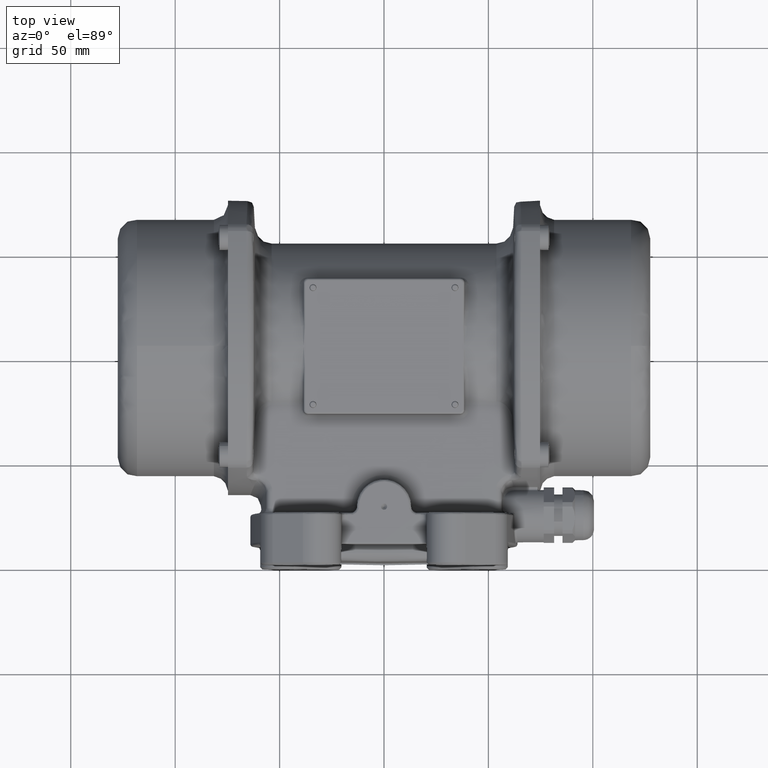
[diagram: clean part render]
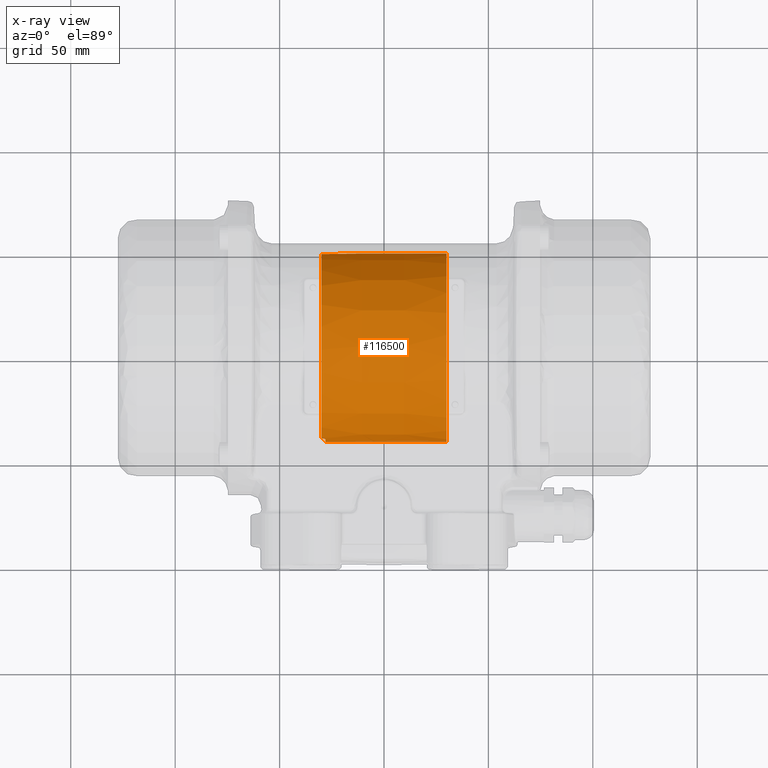
[diagram: x-ray — body ghosted, one internal face saturated and labeled with its STEP entity id]
A machine part, top view, then the same camera in x-ray: the body is ghosted and one INTERNAL B-rep face — a face not visible from any outside direction — is saturated and labeled: STEP entity #116500.
In plain terms, the highlighted conical surface has half-angle 0.024 deg.
Its self-contained STEP definition (entity closure, byte-faithful):
#76 = CARTESIAN_POINT ( 'NONE',  ( -28.00000000000001100, 61.20718973791230200, -11.19579621337726600 ) ) ;
#1265 = CARTESIAN_POINT ( 'NONE',  ( -0.9591951640736524600, 59.82191305653572800, 1.756710943360450400 ) ) ;
#2048 = EDGE_CURVE ( 'NONE', #46435, #46435, #41833, .T. ) ;
#2872 = CARTESIAN_POINT ( 'NONE',  ( -28.63048395047406900, 61.58844660928056700, 12.59148429940840700 ) ) ;
#3505 = CARTESIAN_POINT ( 'NONE',  ( -4.524391948891231900, 59.80428119676132300, 1.167370256460127200 ) ) ;
#5712 = CARTESIAN_POINT ( 'NONE',  ( -0.7441189564443642100, 59.81398049055822200, 1.541855208080801700 ) ) ;
#6078 = FACE_OUTER_BOUND ( 'NONE', #53821, .T. ) ;
#6262 = AXIS2_PLACEMENT_3D ( 'NONE', #68672, #123590, #96294 ) ;
#6907 = CARTESIAN_POINT ( 'NONE',  ( -28.38668111963762500, 61.55780785602030400, -12.48622016201640900 ) ) ;
#8174 = CARTESIAN_POINT ( 'NONE',  ( -1.075250301185313400, 59.82582032749495200, -1.852137366696527100 ) ) ;
#10307 = CARTESIAN_POINT ( 'NONE',  ( -4.595957554822885700, 59.80100924520926500, 1.033514910205030100 ) ) ;
#11484 = CARTESIAN_POINT ( 'NONE',  ( -29.65038747615046300, 61.92174534944577900, -13.68662555184475800 ) ) ;
#11653 = CARTESIAN_POINT ( 'NONE',  ( -30.66662882627647200, 62.02308886876912200, -14.00000000041757700 ) ) ;
#12104 = CARTESIAN_POINT ( 'NONE',  ( -28.00000000000290300, 61.09694766286659700, 10.75347987912326000 ) ) ;
#12537 = CARTESIAN_POINT ( 'NONE',  ( -2.807929271627971800, 59.84882699633639200, 2.331510117293006200 ) ) ;
#12637 = CARTESIAN_POINT ( 'NONE',  ( -0.1679591586478749700, 59.78756988322093200, 0.3079605312763930600 ) ) ;
#12747 = CARTESIAN_POINT ( 'NONE',  ( -3.103273009496274200, 59.84516713404418900, -2.257250850667746000 ) ) ;
#14581 = VERTEX_POINT ( 'NONE', #94274 ) ;
#14980 = EDGE_CURVE ( 'NONE', #14581, #47254, #79836, .T. ) ;
#14989 = CARTESIAN_POINT ( 'NONE',  ( -0.9579767890862713700, 59.82187081702780100, -1.755641839759673400 ) ) ;
#15196 = EDGE_LOOP ( 'NONE', ( #71601 ) ) ;
#17143 = CARTESIAN_POINT ( 'NONE',  ( -0.2422682719131845400, 59.79138072526280500, -0.6032879798772877700 ) ) ;
#17243 = CARTESIAN_POINT ( 'NONE',  ( -4.595418627989382700, 59.80103367417699200, -1.034462519434005800 ) ) ;
#20602 = CARTESIAN_POINT ( 'NONE',  ( -28.99817763037981800, 61.78282720874974400, -13.24291403402370200 ) ) ;
#21761 = CARTESIAN_POINT ( 'NONE',  ( -2.194559165973540600, 59.84778376505631300, 2.316402160914696300 ) ) ;
#21869 = CARTESIAN_POINT ( 'NONE',  ( -1.329901839518759000, 59.83323750238378100, -2.022595602663269000 ) ) ;
#22845 = CARTESIAN_POINT ( 'NONE',  ( -30.79789903522002700, 62.02314577073265400, -13.99999808823929800 ) ) ;
#23683 = DIRECTION ( 'NONE',  ( -2.302730277845319100E-016, -1.000000000000000000, 8.326672684688669100E-017 ) ) ;
#23930 = CARTESIAN_POINT ( 'NONE',  ( -28.00000000000290300, 61.09694766286659700, 10.75347987912326000 ) ) ;
#26364 = CARTESIAN_POINT ( 'NONE',  ( -4.832021946906008800, 59.78951334247789600, 2.385244779468109800E-015 ) ) ;
#26454 = CARTESIAN_POINT ( 'NONE',  ( -1.465486840574935500, 59.83663973350437000, -2.095047785506118000 ) ) ;
#26723 = DIRECTION ( 'NONE',  ( 1.000000000000000000, -1.150728673948129800E-016, -3.835762246493769600E-017 ) ) ;
#27730 = B_SPLINE_CURVE_WITH_KNOTS ( 'NONE', 3,
 ( #137246, #22845, #73147, #109698, #121106, #11484, #47993, #38889, #20602, #127984, #68554, #6907, #86873, #75416, #36612, #125707, #76, #112024 ),
 .UNSPECIFIED., .F., .F.,
 ( 4, 2, 2, 2, 2, 2, 2, 2, 4 ),
 ( 0.0000000000000000000, 0.0005973967454903261900, 0.001194793490980652400, 0.001792190236470978600, 0.002389586981961304800, 0.002986983727451631000, 0.003584380472941957200, 0.004181777218432283800, 0.004779173963922609500 ),
 .UNSPECIFIED. ) ;
#28721 = CARTESIAN_POINT ( 'NONE',  ( -4.522914775663095600, 59.80434806045986600, -1.170047588452056500 ) ) ;
#30419 = CARTESIAN_POINT ( 'NONE',  ( -28.04661305783869500, 61.24903519635886100, 11.36034028670292400 ) ) ;
#31236 = CARTESIAN_POINT ( 'NONE',  ( -29.70260038306108200, 61.85160644014899800, 13.46400257497232800 ) ) ;
#32839 = CIRCLE ( 'NONE', #56392, 45.22500000000000100 ) ;
#33306 = CARTESIAN_POINT ( 'NONE',  ( -0.4755939824666823900, 59.80259376394835900, -1.167375021531350300 ) ) ;
#34556 = CARTESIAN_POINT ( 'NONE',  ( -29.05697534669284500, 61.71948938152274900, 13.03389284351778900 ) ) ;
#34796 = CARTESIAN_POINT ( 'NONE',  ( -28.37729604173941300, 61.47987968419532500, 12.21147677543944000 ) ) ;
#35805 = CARTESIAN_POINT ( 'NONE',  ( -29.42410187056383100, 61.80429146446464000, 13.31278413948685100 ) ) ;
#36612 = CARTESIAN_POINT ( 'NONE',  ( -28.09399500596581900, 61.35806315925512400, -11.76996144634384400 ) ) ;
#37766 = CARTESIAN_POINT ( 'NONE',  ( -4.832021946906009700, 59.78951334247791000, 0.1539883212716038100 ) ) ;
#38889 = CARTESIAN_POINT ( 'NONE',  ( -29.15064227490235600, 61.82225758318271100, -13.37041809647877600 ) ) ;
#39634 = DIRECTION ( 'NONE',  ( 1.000000000000000000, -1.150728673948129800E-016, -3.835762246493769600E-017 ) ) ;
#41135 = CONICAL_SURFACE ( 'NONE', #139123, 45.22500000000000100, 0.0004166666425537813400 ) ;
#41833 = B_SPLINE_CURVE_WITH_KNOTS ( 'NONE', 3,
 ( #26364, #37766, #88034, #124631, #108589, #10307, #3505, #92507, #113208, #99475, #106323, #94907, #44651, #83469, #12537, #140675, #21761, #101735, #110841, #67362, #74313, #122253, #1265, #5712, #81199, #117770, #136160, #60538, #12637, #74210, #78846, #17143, #97136, #99580, #33306, #83566, #42424, #14989, #8174, #21869, #26454, #140773, #136253, #74412, #90384, #12747, #133917, #122350, #92710, #92616, #49253, #78940, #101830, #28721, #17243, #72057, #120127, #115544 ),
 .UNSPECIFIED., .T., .F.,
 ( 4, 2, 2, 2, 2, 2, 2, 2, 2, 2, 2, 2, 2, 2, 2, 2, 2, 2, 2, 2, 2, 2, 2, 2, 2, 2, 2, 2, 4 ),
 ( -0.003643149380544224600, -0.003187750303662130600, -0.002732351226780036600, -0.002276952149897943500, -0.001821553073015849500, -0.001366153996133755500, -0.0009107549192516623700, 4.323451252433510600E-008, 0.0004554423113946170400, 0.0009108413882767101700, 0.001366240465158802400, 0.001821639542040896400, 0.002277038618922988700, 0.002732437695805081800, 0.003643235849569268100, 0.004098634926451361200, 0.004554034003333455200, 0.005009433080215548400, 0.005464832157097639800, 0.005920231233979732900, 0.006375630310861827800, 0.007286428464626014100, 0.007741827541508107200, 0.008197226618390200300, 0.008652625695272295200, 0.009108024772154388300, 0.009563423849036483200, 0.01001882292591857600, 0.01092962107968276400 ),
 .UNSPECIFIED. ) ;
#42424 = CARTESIAN_POINT ( 'NONE',  ( -0.7430529249628072800, 59.81393844643341100, -1.540640665760967500 ) ) ;
#42689 = FACE_BOUND ( 'NONE', #100967, .T. ) ;
#43323 = ORIENTED_EDGE ( 'NONE', *, *, #64327, .F. ) ;
#44222 = CARTESIAN_POINT ( 'NONE',  ( -30.00000000000114800, 105.0000000000000000, -2.195499839133995100E-015 ) ) ;
#44651 = CARTESIAN_POINT ( 'NONE',  ( -3.534478584112805700, 59.83750315965478700, 2.095056674949551400 ) ) ;
#46435 = VERTEX_POINT ( 'NONE', #130790 ) ;
#46643 = VERTEX_POINT ( 'NONE', #131312 ) ;
#47254 = VERTEX_POINT ( 'NONE', #139971 ) ;
#47993 = CARTESIAN_POINT ( 'NONE',  ( -29.47736033105734100, 61.89176779276110800, -13.59240706411138100 ) ) ;
#49253 = CARTESIAN_POINT ( 'NONE',  ( -4.040772126425721900, 59.82319856308408400, -1.756724895951598900 ) ) ;
#49617 = DIRECTION ( 'NONE',  ( -2.301457347896261600E-016, -1.000000000000000000, 8.326672684688669100E-017 ) ) ;
#52889 = ORIENTED_EDGE ( 'NONE', *, *, #14980, .F. ) ;
#53821 = EDGE_LOOP ( 'NONE', ( #43323 ) ) ;
#54780 = EDGE_CURVE ( 'NONE', #68144, #114702, #101299, .T. ) ;
#56392 = AXIS2_PLACEMENT_3D ( 'NONE', #59144, #107170, #56880 ) ;
#56880 = DIRECTION ( 'NONE',  ( 4.748673661159286200E-014, -1.000000000000000000, 8.326672684688669100E-017 ) ) ;
#59144 = CARTESIAN_POINT ( 'NONE',  ( 30.00000000000114800, 105.0000000000000000, -4.496957187030429500E-015 ) ) ;
#60538 = CARTESIAN_POINT ( 'NONE',  ( -0.2298814799929683200, 59.79089545957983600, 0.6139783371546316800 ) ) ;
#64327 = EDGE_CURVE ( 'NONE', #46643, #46643, #32839, .T. ) ;
#64506 = CARTESIAN_POINT ( 'NONE',  ( -28.18475543531669600, 61.36551985407135100, 11.79674471153071900 ) ) ;
#66458 = CARTESIAN_POINT ( 'NONE',  ( -30.33331441314178500, 62.02294280471558400, -14.00000000041755000 ) ) ;
#67362 = CARTESIAN_POINT ( 'NONE',  ( -1.466411223272046800, 59.83666425057888500, 2.095574979778532600 ) ) ;
#68144 = VERTEX_POINT ( 'NONE', #23930 ) ;
#68554 = CARTESIAN_POINT ( 'NONE',  ( -28.60187020829106400, 61.65318206560921500, -12.81308009821976100 ) ) ;
#68672 = CARTESIAN_POINT ( 'NONE',  ( -28.00000000000580200, 105.0000000000000000, -2.272215084063694800E-015 ) ) ;
#70516 = EDGE_CURVE ( 'NONE', #14581, #92497, #27730, .T. ) ;
#70927 = EDGE_CURVE ( 'NONE', #47254, #114702, #128999, .T. ) ;
#70961 = ORIENTED_EDGE ( 'NONE', *, *, #131773, .F. ) ;
#71601 = ORIENTED_EDGE ( 'NONE', *, *, #2048, .F. ) ;
#72057 = CARTESIAN_POINT ( 'NONE',  ( -4.770098507885589500, 59.79278752451039500, -0.6139900019167725500 ) ) ;
#72500 = ORIENTED_EDGE ( 'NONE', *, *, #54780, .T. ) ;
#73147 = CARTESIAN_POINT ( 'NONE',  ( -30.59949590421263800, 62.01646089864576800, -13.97978930964190900 ) ) ;
#74210 = CARTESIAN_POINT ( 'NONE',  ( -0.1679620612344734100, 59.78757003407662300, -0.1540022345345633000 ) ) ;
#74313 = CARTESIAN_POINT ( 'NONE',  ( -1.332538980336258200, 59.83330501915659000, 2.024047261218251800 ) ) ;
#74392 = CIRCLE ( 'NONE', #6262, 45.20083333333330000 ) ;
#74412 = CARTESIAN_POINT ( 'NONE',  ( -2.653979394883999800, 59.84876251919601500, -2.331505355360758500 ) ) ;
#75416 = CARTESIAN_POINT ( 'NONE',  ( -28.15047889951010200, 61.40924566314220100, -11.95785042058225600 ) ) ;
#75719 = CARTESIAN_POINT ( 'NONE',  ( -28.72948749380831400, 61.62349852676400300, 12.71142135717725500 ) ) ;
#75864 = CARTESIAN_POINT ( 'NONE',  ( -28.24242478163769800, 61.40442399790212100, 11.93950880959793500 ) ) ;
#78846 = CARTESIAN_POINT ( 'NONE',  ( -0.1830719990483249400, 59.78836248240494200, -0.3054119037116643200 ) ) ;
#78940 = CARTESIAN_POINT ( 'NONE',  ( -4.255852626123001400, 59.81544501801429400, -1.541868416689639900 ) ) ;
#79836 = B_SPLINE_CURVE_WITH_KNOTS ( 'NONE', 3,
 ( #93996, #11653, #66458, #82576 ),
 .UNSPECIFIED., .F., .F.,
 ( 4, 4 ),
 ( 5.676060011253299600E-005, 1.000000000000000000 ),
 .UNSPECIFIED. ) ;
#81199 = CARTESIAN_POINT ( 'NONE',  ( -0.6475876625807380800, 59.81004047897413800, 1.424616450911232700 ) ) ;
#82576 = CARTESIAN_POINT ( 'NONE',  ( -30.00000000000410000, 62.02279674059740000, -14.00000000000000000 ) ) ;
#83011 = ORIENTED_EDGE ( 'NONE', *, *, #70516, .T. ) ;
#83469 = CARTESIAN_POINT ( 'NONE',  ( -3.113955994789630000, 59.84565172913075100, 2.269634417697225200 ) ) ;
#83566 = CARTESIAN_POINT ( 'NONE',  ( -0.6446619547286459600, 59.80991792281469800, -1.420706447381509200 ) ) ;
#86873 = CARTESIAN_POINT ( 'NONE',  ( -28.29670177600041800, 61.50888103092317000, -12.31507666790474800 ) ) ;
#88034 = CARTESIAN_POINT ( 'NONE',  ( -4.816912817177605000, 59.79029319241929800, 0.3053988376590442400 ) ) ;
#88392 = CARTESIAN_POINT ( 'NONE',  ( 30.00000000000329700, 105.0000000000000000, -4.496957187030429500E-015 ) ) ;
#90384 = CARTESIAN_POINT ( 'NONE',  ( -2.805390300254022100, 59.84803884690163800, -2.316406620270425000 ) ) ;
#92090 = CARTESIAN_POINT ( 'NONE',  ( -27.99999999999999600, 61.17231403770818300, 11.06117691639159500 ) ) ;
#92497 = VERTEX_POINT ( 'NONE', #138334 ) ;
#92507 = CARTESIAN_POINT ( 'NONE',  ( -4.355322208107871500, 59.81146475003746600, 1.420705181963014800 ) ) ;
#92616 = CARTESIAN_POINT ( 'NONE',  ( -3.920799711697177800, 59.82712900846079400, -1.855077520637873300 ) ) ;
#92710 = CARTESIAN_POINT ( 'NONE',  ( -3.667421044877864600, 59.83427947075743700, -2.024060655099439100 ) ) ;
#93996 = CARTESIAN_POINT ( 'NONE',  ( -30.99997161970560100, 62.02323494519480100, -14.00000000000000000 ) ) ;
#94158 = CARTESIAN_POINT ( 'NONE',  ( -28.45484140373140400, 61.51675274765519000, 12.34189081976987300 ) ) ;
#94274 = CARTESIAN_POINT ( 'NONE',  ( -30.99997161970560100, 62.02323494519480100, -14.00000000000000000 ) ) ;
#94907 = CARTESIAN_POINT ( 'NONE',  ( -3.670067798550663300, 59.83421390983811200, 2.022603546741558800 ) ) ;
#96294 = DIRECTION ( 'NONE',  ( -2.302687824161247200E-016, -1.000000000000000000, 8.326672684688669100E-017 ) ) ;
#97136 = CARTESIAN_POINT ( 'NONE',  ( -0.2870738894875296000, 59.79364190636795900, -0.7512978821492019000 ) ) ;
#99475 = CARTESIAN_POINT ( 'NONE',  ( -4.042000838679388000, 59.82315699097900800, 1.755646844859911200 ) ) ;
#99580 = CARTESIAN_POINT ( 'NONE',  ( -0.4040288602827681300, 59.79926231367301900, -1.033521504916699000 ) ) ;
#100967 = EDGE_LOOP ( 'NONE', ( #138164, #52889, #83011, #70961, #72500 ) ) ;
#101299 = B_SPLINE_CURVE_WITH_KNOTS ( 'NONE', 3,
 ( #12104, #92090, #30419, #64506, #75864, #34796, #94158, #2872, #75719, #139796, #34556, #35805, #31236, #127197 ),
 .UNSPECIFIED., .F., .F.,
 ( 4, 2, 2, 2, 2, 2, 4 ),
 ( 4.862303340348951000E-016, 0.0009368633115363567300, 0.001405294967304291900, 0.001873726623072227100, 0.002342158278840162300, 0.002810589934608097600, 0.003747453246143962800 ),
 .UNSPECIFIED. ) ;
#101735 = CARTESIAN_POINT ( 'NONE',  ( -1.896678409635014000, 59.84466332924359500, 2.257242369651031800 ) ) ;
#101830 = CARTESIAN_POINT ( 'NONE',  ( -4.352385707828083200, 59.81158531006053600, -1.424629139286189400 ) ) ;
#103571 = AXIS2_PLACEMENT_3D ( 'NONE', #44222, #39634, #23683 ) ;
#106323 = CARTESIAN_POINT ( 'NONE',  ( -3.924724720542939900, 59.82700887248892500, 1.852143744167902100 ) ) ;
#106591 = FACE_BOUND ( 'NONE', #15196, .T. ) ;
#107170 = DIRECTION ( 'NONE',  ( -1.000000000000000000, 1.224646799147352000E-016, -1.019723305085167900E-032 ) ) ;
#108589 = CARTESIAN_POINT ( 'NONE',  ( -4.712912736977649800, 59.79548607914141200, 0.7512876673056411200 ) ) ;
#109698 = CARTESIAN_POINT ( 'NONE',  ( -30.20967525946035100, 61.99069662975470200, -13.90085067955756100 ) ) ;
#110841 = CARTESIAN_POINT ( 'NONE',  ( -1.748666422114861800, 59.84235735021457700, 2.212466142112306400 ) ) ;
#112024 = CARTESIAN_POINT ( 'NONE',  ( -28.00000000000290300, 61.15806420756750600, -11.00000000000000000 ) ) ;
#113208 = CARTESIAN_POINT ( 'NONE',  ( -4.256929390503462000, 59.81540344947363500, 1.540641782006813000 ) ) ;
#114702 = VERTEX_POINT ( 'NONE', #123405 ) ;
#115544 = CARTESIAN_POINT ( 'NONE',  ( -4.832021946906008800, 59.78951334247789600, 2.385244779468109800E-015 ) ) ;
#116500 = ADVANCED_FACE ( 'NONE', ( #106591, #6078, #42689 ), #41135, .F. ) ;
#117770 = CARTESIAN_POINT ( 'NONE',  ( -0.4770615418480108600, 59.80266142109657300, 1.170035820689766100 ) ) ;
#120127 = CARTESIAN_POINT ( 'NONE',  ( -4.832021946906008800, 59.78951334247785400, -0.3079766425432010100 ) ) ;
#121106 = CARTESIAN_POINT ( 'NONE',  ( -30.01617433355853500, 61.97126974749880200, -13.84103816912192800 ) ) ;
#122253 = CARTESIAN_POINT ( 'NONE',  ( -1.079165058218135800, 59.82594340901769700, 1.855063397086667900 ) ) ;
#122350 = CARTESIAN_POINT ( 'NONE',  ( -3.533546372664091000, 59.83752707920657300, -2.095587642901890000 ) ) ;
#123405 = CARTESIAN_POINT ( 'NONE',  ( -30.00000000000060000, 61.88464998089389700, 13.56858845753562000 ) ) ;
#123590 = DIRECTION ( 'NONE',  ( 1.000000000000000000, -1.150728673948129800E-016, -3.835762246493769600E-017 ) ) ;
#124631 = CARTESIAN_POINT ( 'NONE',  ( -4.757717808280529100, 59.79326216848392100, 0.6032768078673090800 ) ) ;
#125707 = CARTESIAN_POINT ( 'NONE',  ( -28.01898498976775500, 61.25704541480157400, -11.38891536737136400 ) ) ;
#127197 = CARTESIAN_POINT ( 'NONE',  ( -30.00000000000060000, 61.88464998089389700, 13.56858845753562000 ) ) ;
#127984 = CARTESIAN_POINT ( 'NONE',  ( -28.72490013178481400, 61.69857317995762000, -12.96516583350603800 ) ) ;
#128999 = CIRCLE ( 'NONE', #103571, 45.19999999999999600 ) ;
#130790 = CARTESIAN_POINT ( 'NONE',  ( -2.499999999995400100, 59.84869828040700000, 2.331505447777510100 ) ) ;
#131312 = CARTESIAN_POINT ( 'NONE',  ( 30.00000000000329300, 59.77499999999999100, -7.312194653799787900E-016 ) ) ;
#131773 = EDGE_CURVE ( 'NONE', #68144, #92497, #74392, .T. ) ;
#133917 = CARTESIAN_POINT ( 'NONE',  ( -3.251286452909638100, 59.84298470839495100, -2.212476495302179400 ) ) ;
#136160 = CARTESIAN_POINT ( 'NONE',  ( -0.4045586115664421300, 59.79928676085909700, 1.034450723938112000 ) ) ;
#136253 = CARTESIAN_POINT ( 'NONE',  ( -2.192019943335494300, 59.84856979395831900, -2.331505632656119900 ) ) ;
#137246 = CARTESIAN_POINT ( 'NONE',  ( -30.99997161970560100, 62.02323494519480100, -14.00000000000000000 ) ) ;
#138164 = ORIENTED_EDGE ( 'NONE', *, *, #70927, .F. ) ;
#138334 = CARTESIAN_POINT ( 'NONE',  ( -28.00000000000290300, 61.15806420756750600, -11.00000000000000000 ) ) ;
#139123 = AXIS2_PLACEMENT_3D ( 'NONE', #88392, #26723, #49617 ) ;
#139796 = CARTESIAN_POINT ( 'NONE',  ( -28.94254781863438100, 61.68890492538592700, 12.93221292187618200 ) ) ;
#139971 = CARTESIAN_POINT ( 'NONE',  ( -30.00000000000410000, 62.02279674059740000, -14.00000000000000000 ) ) ;
#140675 = CARTESIAN_POINT ( 'NONE',  ( -2.345969578030630200, 59.84863389497529300, 2.331503112640714200 ) ) ;
#140773 = CARTESIAN_POINT ( 'NONE',  ( -1.885999999173597600, 59.84513900149706000, -2.269626361635441300 ) ) ;